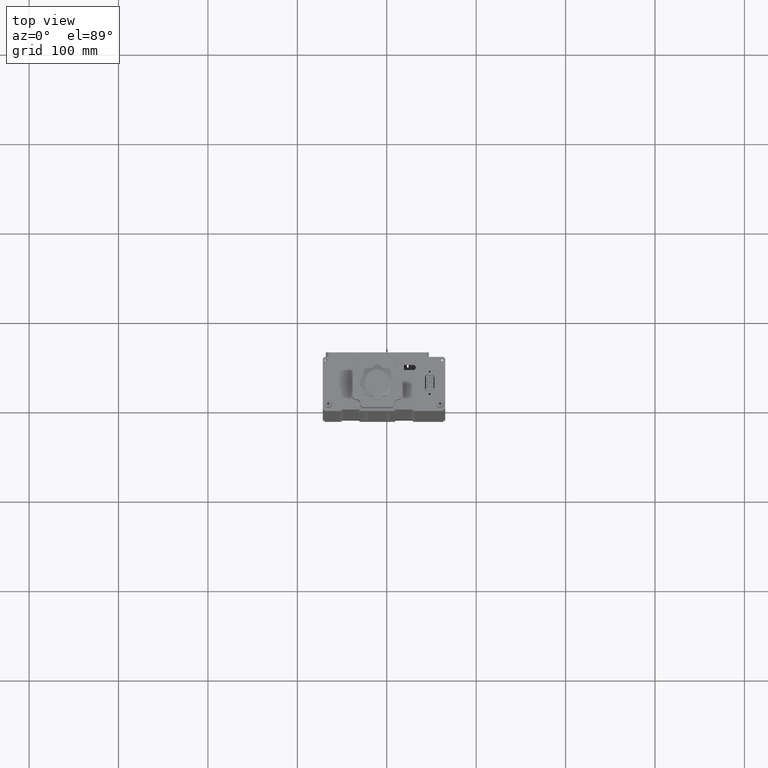
[diagram: clean part render]
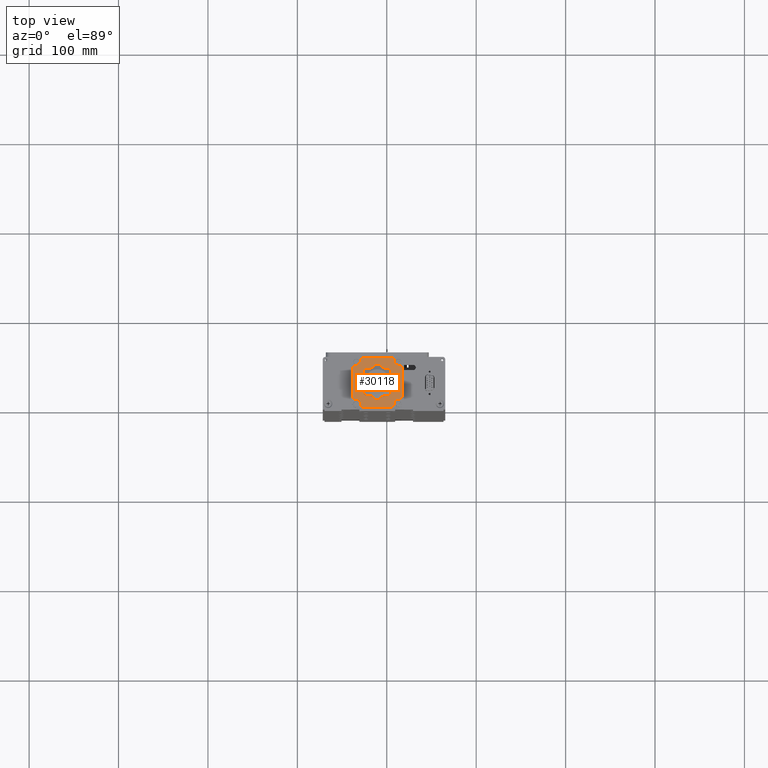
[diagram: same view with one face highlighted and labeled with its STEP entity id]
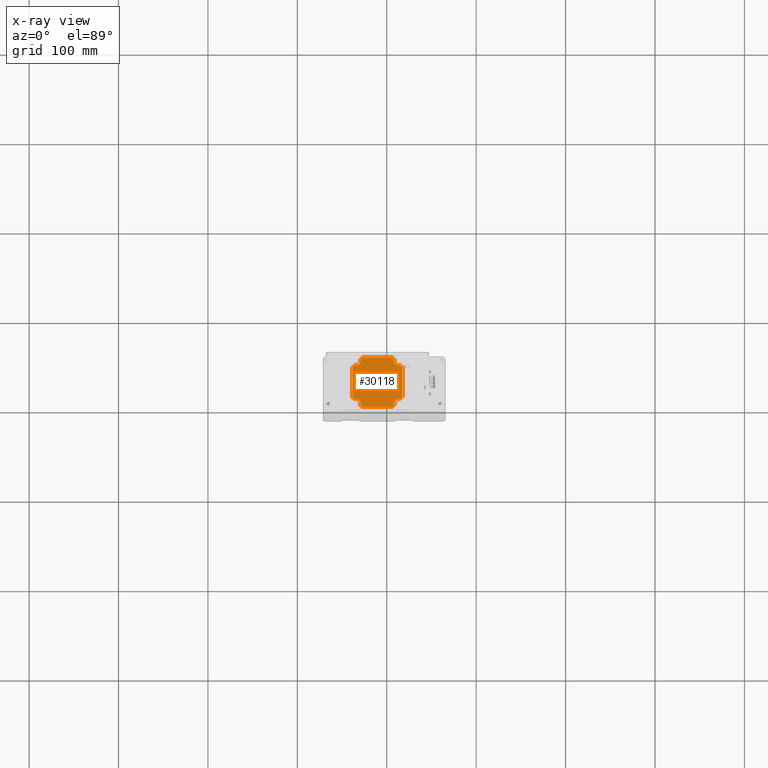
[diagram: x-ray of the same camera — body ghosted, the highlighted face saturated]
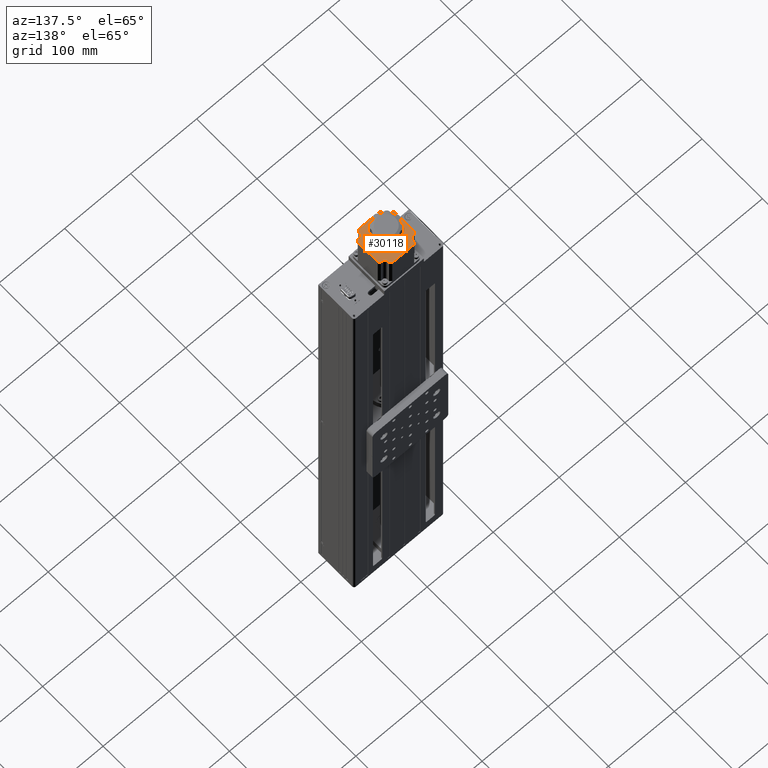
[diagram: same view with one face highlighted and labeled with its STEP entity id]
A machine part, top view. The second image highlights one B-rep face of the part: STEP entity #30118.
The next image is the same camera in x-ray: the body ghosted, the highlighted face saturated — about 0% of this face is hidden behind the body in this view.
A second angle (auxiliary view) of the same face is appended — the face is thin or edge-on in the first view.
In plain terms, the highlighted planar face has unit normal (0, 0, -1).
Its self-contained STEP definition (entity closure, byte-faithful):
#193 = VERTEX_POINT ( 'NONE', #4039 ) ;
#312 = ORIENTED_EDGE ( 'NONE', *, *, #14289, .F. ) ;
#525 = ORIENTED_EDGE ( 'NONE', *, *, #25549, .F. ) ;
#588 = CARTESIAN_POINT ( 'NONE',  ( -34.18080835603993961, 39.65234937935200321, 417.8000000000000114 ) ) ;
#684 = CARTESIAN_POINT ( 'NONE',  ( -36.11080835603994643, 1.512349379351983547, 417.8000000000000114 ) ) ;
#1204 = DIRECTION ( 'NONE',  ( 1.000000000000000000, -7.831708695154873560E-16, -0.000000000000000000 ) ) ;
#1373 = EDGE_CURVE ( 'NONE', #21879, #29767, #12743, .T. ) ;
#1464 = LINE ( 'NONE', #7964, #12417 ) ;
#1984 = DIRECTION ( 'NONE',  ( -1.000000000000000000, 0.000000000000000000, 0.000000000000000000 ) ) ;
#2150 = EDGE_CURVE ( 'NONE', #15566, #14436, #5323, .T. ) ;
#2249 = CARTESIAN_POINT ( 'NONE',  ( -10.61080835603994110, 20.58234937935199582, 417.8000000000000114 ) ) ;
#2570 = DIRECTION ( 'NONE',  ( -1.000000000000000000, 7.831708695154873560E-16, 0.000000000000000000 ) ) ;
#2606 = ORIENTED_EDGE ( 'NONE', *, *, #4635, .T. ) ;
#2746 = CIRCLE ( 'NONE', #12120, 4.499999999999997335 ) ;
#3060 = CARTESIAN_POINT ( 'NONE',  ( -27.18080835603992895, 48.58234937935198872, 417.8000000000000114 ) ) ;
#3087 = VECTOR ( 'NONE', #11141, 1000.000000000000000 ) ;
#3100 = VECTOR ( 'NONE', #15349, 1000.000000000000114 ) ;
#3150 = VERTEX_POINT ( 'NONE', #30393 ) ;
#3387 = LINE ( 'NONE', #7880, #28448 ) ;
#3531 = VERTEX_POINT ( 'NONE', #6876 ) ;
#3665 = VERTEX_POINT ( 'NONE', #17038 ) ;
#3705 = ORIENTED_EDGE ( 'NONE', *, *, #1373, .F. ) ;
#3783 = VERTEX_POINT ( 'NONE', #30504 ) ;
#3857 = VERTEX_POINT ( 'NONE', #24584 ) ;
#3867 = LINE ( 'NONE', #27351, #12747 ) ;
#4039 = CARTESIAN_POINT ( 'NONE',  ( -29.68080835603994316, 46.08234937935200293, 417.8000000000000114 ) ) ;
#4106 = VERTEX_POINT ( 'NONE', #4663 ) ;
#4260 = VERTEX_POINT ( 'NONE', #19921 ) ;
#4380 = VERTEX_POINT ( 'NONE', #8486 ) ;
#4381 = CARTESIAN_POINT ( 'NONE',  ( -13.78580835603994181, 20.58234937935199582, 417.8000000000000114 ) ) ;
#4440 = ORIENTED_EDGE ( 'NONE', *, *, #8873, .T. ) ;
#4521 = ORIENTED_EDGE ( 'NONE', *, *, #13809, .T. ) ;
#4543 = VECTOR ( 'NONE', #20016, 1000.000000000000114 ) ;
#4591 = CARTESIAN_POINT ( 'NONE',  ( -29.68080835603994316, 46.08234937935200293, 417.8000000000000114 ) ) ;
#4635 = EDGE_CURVE ( 'NONE', #3150, #17161, #21594, .T. ) ;
#4663 = CARTESIAN_POINT ( 'NONE',  ( 8.459191643960066287, -4.917650620648031712, 417.8000000000000114 ) ) ;
#4759 = CARTESIAN_POINT ( 'NONE',  ( 12.95919164396006984, -2.987650620648013344, 417.8000000000000114 ) ) ;
#4875 = EDGE_CURVE ( 'NONE', #15566, #4380, #21528, .T. ) ;
#5042 = LINE ( 'NONE', #7057, #25687 ) ;
#5186 = LINE ( 'NONE', #12601, #19157 ) ;
#5323 = LINE ( 'NONE', #684, #23366 ) ;
#5620 = ORIENTED_EDGE ( 'NONE', *, *, #15753, .T. ) ;
#5940 = LINE ( 'NONE', #15200, #3100 ) ;
#5953 = DIRECTION ( 'NONE',  ( 1.000000000000000000, -1.239088197126290570E-16, 0.000000000000000000 ) ) ;
#5963 = AXIS2_PLACEMENT_3D ( 'NONE', #4759, #23440, #1984 ) ;
#5971 = LINE ( 'NONE', #10591, #4543 ) ;
#6272 = DIRECTION ( 'NONE',  ( 0.000000000000000000, 0.000000000000000000, -1.000000000000000000 ) ) ;
#6325 = VECTOR ( 'NONE', #13153, 1000.000000000000114 ) ;
#6329 = VERTEX_POINT ( 'NONE', #25363 ) ;
#6482 = CARTESIAN_POINT ( 'NONE',  ( -36.11080835603994643, 1.512349379351983547, 417.8000000000000114 ) ) ;
#6498 = LINE ( 'NONE', #18546, #10151 ) ;
#6669 = CARTESIAN_POINT ( 'NONE',  ( -29.68080835603994316, 44.15234937935200321, 417.8000000000000114 ) ) ;
#6778 = LINE ( 'NONE', #13723, #26392 ) ;
#6803 = DIRECTION ( 'NONE',  ( -1.000000000000000000, 0.000000000000000000, 0.000000000000000000 ) ) ;
#6876 = CARTESIAN_POINT ( 'NONE',  ( 8.459191643960068063, -2.987650620648013344, 417.8000000000000114 ) ) ;
#6894 = DIRECTION ( 'NONE',  ( -1.000000000000000000, 0.000000000000000000, 0.000000000000000000 ) ) ;
#6964 = CIRCLE ( 'NONE', #5963, 4.499999999999999112 ) ;
#7057 = CARTESIAN_POINT ( 'NONE',  ( 12.95919164396006273, 39.65234937935200321, 417.8000000000000114 ) ) ;
#7083 = EDGE_CURVE ( 'NONE', #26823, #21116, #1464, .T. ) ;
#7333 = ORIENTED_EDGE ( 'NONE', *, *, #2150, .T. ) ;
#7409 = PLANE ( 'NONE',  #28111 ) ;
#7779 = CARTESIAN_POINT ( 'NONE',  ( -38.61080835603996064, 48.58234937935198872, 417.8000000000000114 ) ) ;
#7880 = CARTESIAN_POINT ( 'NONE',  ( 8.459191643960066287, -2.987650620648013344, 417.8000000000000114 ) ) ;
#7964 = CARTESIAN_POINT ( 'NONE',  ( 17.38919164396007133, 48.58234937935198872, 417.8000000000000114 ) ) ;
#8144 = CIRCLE ( 'NONE', #25406, 3.175000000000000711 ) ;
#8199 = CARTESIAN_POINT ( 'NONE',  ( -38.61080835603996064, 37.15234937935200321, 417.8000000000000114 ) ) ;
#8486 = CARTESIAN_POINT ( 'NONE',  ( -38.61080835603996064, 37.15234937935200321, 417.8000000000000114 ) ) ;
#8497 = CARTESIAN_POINT ( 'NONE',  ( -34.18080835603993251, -2.987650620648013344, 417.8000000000000114 ) ) ;
#8651 = DIRECTION ( 'NONE',  ( 1.110223024625156294E-16, -1.000000000000000000, 0.000000000000000000 ) ) ;
#8661 = VECTOR ( 'NONE', #25866, 1000.000000000000000 ) ;
#8760 = LINE ( 'NONE', #22350, #25942 ) ;
#8795 = ORIENTED_EDGE ( 'NONE', *, *, #19072, .F. ) ;
#8873 = EDGE_CURVE ( 'NONE', #3857, #21475, #28847, .T. ) ;
#9568 = LINE ( 'NONE', #26699, #19999 ) ;
#9651 = ORIENTED_EDGE ( 'NONE', *, *, #16731, .F. ) ;
#9921 = EDGE_CURVE ( 'NONE', #14339, #23682, #19892, .T. ) ;
#9935 = CARTESIAN_POINT ( 'NONE',  ( 17.38919164396006423, 4.012349379351978662, 417.8000000000000114 ) ) ;
#10151 = VECTOR ( 'NONE', #23158, 1000.000000000000000 ) ;
#10183 = CARTESIAN_POINT ( 'NONE',  ( 12.95919164396006273, 39.65234937935200321, 417.8000000000000114 ) ) ;
#10591 = CARTESIAN_POINT ( 'NONE',  ( -27.18080835603992895, -7.417650620648006843, 417.8000000000000114 ) ) ;
#11047 = ORIENTED_EDGE ( 'NONE', *, *, #9921, .T. ) ;
#11141 = DIRECTION ( 'NONE',  ( -1.110223024625156294E-16, 1.000000000000000000, 0.000000000000000000 ) ) ;
#11164 = CARTESIAN_POINT ( 'NONE',  ( -29.68080835603993606, -2.987650620648013344, 417.8000000000000114 ) ) ;
#11197 = EDGE_CURVE ( 'NONE', #18991, #18373, #15044, .T. ) ;
#11889 = DIRECTION ( 'NONE',  ( 1.000000000000000000, 7.831708695154873560E-16, 0.000000000000000000 ) ) ;
#12047 = DIRECTION ( 'NONE',  ( -1.367953369627425833E-16, -1.000000000000000000, 0.000000000000000000 ) ) ;
#12100 = AXIS2_PLACEMENT_3D ( 'NONE', #17939, #30303, #23175 ) ;
#12120 = AXIS2_PLACEMENT_3D ( 'NONE', #8497, #17927, #27353 ) ;
#12134 = EDGE_CURVE ( 'NONE', #17989, #28901, #2746, .T. ) ;
#12242 = CARTESIAN_POINT ( 'NONE',  ( -29.68080835603994316, 44.15234937935200321, 417.8000000000000114 ) ) ;
#12417 = VECTOR ( 'NONE', #5953, 1000.000000000000000 ) ;
#12601 = CARTESIAN_POINT ( 'NONE',  ( 8.459191643960059181, 44.15234937935200321, 417.8000000000000114 ) ) ;
#12653 = EDGE_CURVE ( 'NONE', #29529, #4106, #6778, .T. ) ;
#12743 = CIRCLE ( 'NONE', #30001, 4.499999999999997335 ) ;
#12747 = VECTOR ( 'NONE', #8651, 1000.000000000000000 ) ;
#12819 = CARTESIAN_POINT ( 'NONE',  ( -7.435808356039941280, 20.58234937935199582, 417.8000000000000114 ) ) ;
#12827 = DIRECTION ( 'NONE',  ( 1.110223024625156294E-16, -1.000000000000000000, 0.000000000000000000 ) ) ;
#12968 = EDGE_CURVE ( 'NONE', #18373, #18991, #8144, .T. ) ;
#12992 = CARTESIAN_POINT ( 'NONE',  ( 8.459191643960062734, 44.15234937935200321, 417.8000000000000114 ) ) ;
#13085 = VECTOR ( 'NONE', #19431, 1000.000000000000114 ) ;
#13153 = DIRECTION ( 'NONE',  ( -0.7071067811865500152, -0.7071067811865451302, 0.000000000000000000 ) ) ;
#13438 = ORIENTED_EDGE ( 'NONE', *, *, #12653, .T. ) ;
#13723 = CARTESIAN_POINT ( 'NONE',  ( 8.459191643960066287, -4.917650620648031712, 417.8000000000000114 ) ) ;
#13809 = EDGE_CURVE ( 'NONE', #14436, #17989, #8760, .T. ) ;
#14015 = DIRECTION ( 'NONE',  ( -0.7071067811865509034, -0.7071067811865441310, 0.000000000000000000 ) ) ;
#14201 = DIRECTION ( 'NONE',  ( 0.000000000000000000, 0.000000000000000000, -1.000000000000000000 ) ) ;
#14289 = EDGE_CURVE ( 'NONE', #3531, #4106, #3387, .T. ) ;
#14339 = VERTEX_POINT ( 'NONE', #10183 ) ;
#14436 = VERTEX_POINT ( 'NONE', #6482 ) ;
#14830 = ORIENTED_EDGE ( 'NONE', *, *, #12134, .T. ) ;
#14958 = DIRECTION ( 'NONE',  ( 0.000000000000000000, 0.000000000000000000, -1.000000000000000000 ) ) ;
#15044 = CIRCLE ( 'NONE', #12100, 3.175000000000000711 ) ;
#15200 = CARTESIAN_POINT ( 'NONE',  ( 5.959191643960084050, 48.58234937935198872, 417.8000000000000114 ) ) ;
#15252 = ORIENTED_EDGE ( 'NONE', *, *, #17237, .T. ) ;
#15349 = DIRECTION ( 'NONE',  ( -0.7071067811865456854, 0.7071067811865493491, 0.000000000000000000 ) ) ;
#15389 = ORIENTED_EDGE ( 'NONE', *, *, #24730, .F. ) ;
#15533 = VECTOR ( 'NONE', #28339, 1000.000000000000000 ) ;
#15566 = VERTEX_POINT ( 'NONE', #22373 ) ;
#15753 = EDGE_CURVE ( 'NONE', #23682, #4260, #5186, .T. ) ;
#16224 = ORIENTED_EDGE ( 'NONE', *, *, #26728, .F. ) ;
#16292 = VECTOR ( 'NONE', #14015, 1000.000000000000114 ) ;
#16350 = ORIENTED_EDGE ( 'NONE', *, *, #4875, .F. ) ;
#16551 = CARTESIAN_POINT ( 'NONE',  ( -34.18080835603993961, 44.15234937935200321, 417.8000000000000114 ) ) ;
#16600 = VERTEX_POINT ( 'NONE', #18700 ) ;
#16731 = EDGE_CURVE ( 'NONE', #3665, #21879, #28700, .T. ) ;
#16826 = FACE_BOUND ( 'NONE', #23552, .T. ) ;
#16967 = VECTOR ( 'NONE', #18977, 1000.000000000000114 ) ;
#17038 = CARTESIAN_POINT ( 'NONE',  ( -36.11080835603993933, 39.65234937935200321, 417.8000000000000114 ) ) ;
#17161 = VERTEX_POINT ( 'NONE', #9935 ) ;
#17237 = EDGE_CURVE ( 'NONE', #26823, #193, #25749, .T. ) ;
#17301 = EDGE_CURVE ( 'NONE', #21475, #14339, #5042, .T. ) ;
#17927 = DIRECTION ( 'NONE',  ( 0.000000000000000000, 0.000000000000000000, -1.000000000000000000 ) ) ;
#17939 = CARTESIAN_POINT ( 'NONE',  ( -10.61080835603994110, 20.58234937935199582, 417.8000000000000114 ) ) ;
#17989 = VERTEX_POINT ( 'NONE', #27539 ) ;
#18211 = ORIENTED_EDGE ( 'NONE', *, *, #20956, .T. ) ;
#18373 = VERTEX_POINT ( 'NONE', #4381 ) ;
#18398 = LINE ( 'NONE', #6669, #3087 ) ;
#18546 = CARTESIAN_POINT ( 'NONE',  ( 17.38919164396006423, -7.417650620648013060, 417.8000000000000114 ) ) ;
#18700 = CARTESIAN_POINT ( 'NONE',  ( 12.95919164396006984, 1.512349379351983547, 417.8000000000000114 ) ) ;
#18775 = CARTESIAN_POINT ( 'NONE',  ( 12.95919164396006984, 1.512349379351983547, 417.8000000000000114 ) ) ;
#18977 = DIRECTION ( 'NONE',  ( -0.7071067811865456854, 0.7071067811865493491, 0.000000000000000000 ) ) ;
#18991 = VERTEX_POINT ( 'NONE', #12819 ) ;
#19072 = EDGE_CURVE ( 'NONE', #16600, #3531, #6964, .T. ) ;
#19157 = VECTOR ( 'NONE', #22006, 1000.000000000000000 ) ;
#19431 = DIRECTION ( 'NONE',  ( 0.7071067811865479058, 0.7071067811865470176, 0.000000000000000000 ) ) ;
#19593 = DIRECTION ( 'NONE',  ( -1.000000000000000000, 0.000000000000000000, 0.000000000000000000 ) ) ;
#19611 = ORIENTED_EDGE ( 'NONE', *, *, #7083, .F. ) ;
#19703 = VECTOR ( 'NONE', #11889, 1000.000000000000000 ) ;
#19892 = CIRCLE ( 'NONE', #22356, 4.499999999999999112 ) ;
#19921 = CARTESIAN_POINT ( 'NONE',  ( 8.459191643960059181, 46.08234937935200293, 417.8000000000000114 ) ) ;
#19999 = VECTOR ( 'NONE', #12047, 1000.000000000000000 ) ;
#20016 = DIRECTION ( 'NONE',  ( 0.7071067811865465735, -0.7071067811865484609, -0.000000000000000000 ) ) ;
#20956 = EDGE_CURVE ( 'NONE', #4260, #21116, #5940, .T. ) ;
#21116 = VERTEX_POINT ( 'NONE', #23973 ) ;
#21475 = VERTEX_POINT ( 'NONE', #22058 ) ;
#21528 = LINE ( 'NONE', #7779, #8661 ) ;
#21594 = LINE ( 'NONE', #26385, #13085 ) ;
#21879 = VERTEX_POINT ( 'NONE', #26668 ) ;
#21950 = EDGE_LOOP ( 'NONE', ( #525, #13438, #312, #8795, #15389, #2606, #16224, #4440, #24531, #11047, #5620, #18211, #19611, #15252, #28256, #3705, #9651, #28681, #16350, #7333, #4521, #14830, #26163, #29948 ) ) ;
#22006 = DIRECTION ( 'NONE',  ( -1.110223024625156294E-16, 1.000000000000000000, 0.000000000000000000 ) ) ;
#22045 = EDGE_CURVE ( 'NONE', #3783, #6329, #5971, .T. ) ;
#22058 = CARTESIAN_POINT ( 'NONE',  ( 14.88919164396005357, 39.65234937935200321, 417.8000000000000114 ) ) ;
#22350 = CARTESIAN_POINT ( 'NONE',  ( -34.18080835603993251, 1.512349379351983547, 417.8000000000000114 ) ) ;
#22356 = AXIS2_PLACEMENT_3D ( 'NONE', #28109, #14201, #6803 ) ;
#22373 = CARTESIAN_POINT ( 'NONE',  ( -38.61080835603995354, 4.012349379352013301, 417.8000000000000114 ) ) ;
#22891 = CARTESIAN_POINT ( 'NONE',  ( 5.959191643960069840, -7.417650620648013060, 417.8000000000000114 ) ) ;
#22921 = EDGE_CURVE ( 'NONE', #29767, #193, #18398, .T. ) ;
#23122 = DIRECTION ( 'NONE',  ( 0.7071067811865499042, 0.7071067811865451302, 0.000000000000000000 ) ) ;
#23158 = DIRECTION ( 'NONE',  ( -1.000000000000000000, 1.239088197126290817E-16, 0.000000000000000000 ) ) ;
#23175 = DIRECTION ( 'NONE',  ( -1.000000000000000000, 0.000000000000000000, 0.000000000000000000 ) ) ;
#23366 = VECTOR ( 'NONE', #26333, 1000.000000000000114 ) ;
#23440 = DIRECTION ( 'NONE',  ( 0.000000000000000000, -0.000000000000000000, 1.000000000000000000 ) ) ;
#23552 = EDGE_LOOP ( 'NONE', ( #30577, #28251 ) ) ;
#23682 = VERTEX_POINT ( 'NONE', #12992 ) ;
#23973 = CARTESIAN_POINT ( 'NONE',  ( 5.959191643960084050, 48.58234937935198872, 417.8000000000000114 ) ) ;
#24531 = ORIENTED_EDGE ( 'NONE', *, *, #17301, .T. ) ;
#24584 = CARTESIAN_POINT ( 'NONE',  ( 17.38919164396006423, 37.15234937935197479, 417.8000000000000114 ) ) ;
#24730 = EDGE_CURVE ( 'NONE', #3150, #16600, #25722, .T. ) ;
#25363 = CARTESIAN_POINT ( 'NONE',  ( -27.18080835603991474, -7.417650620648013060, 417.8000000000000114 ) ) ;
#25406 = AXIS2_PLACEMENT_3D ( 'NONE', #2249, #6272, #6894 ) ;
#25549 = EDGE_CURVE ( 'NONE', #29529, #6329, #6498, .T. ) ;
#25687 = VECTOR ( 'NONE', #2570, 1000.000000000000000 ) ;
#25722 = LINE ( 'NONE', #18775, #15533 ) ;
#25749 = LINE ( 'NONE', #4591, #16292 ) ;
#25866 = DIRECTION ( 'NONE',  ( -1.110223024625156294E-16, 1.000000000000000000, 0.000000000000000000 ) ) ;
#25942 = VECTOR ( 'NONE', #1204, 1000.000000000000000 ) ;
#25974 = DIRECTION ( 'NONE',  ( 1.000000000000000000, 0.000000000000000000, 0.000000000000000000 ) ) ;
#26163 = ORIENTED_EDGE ( 'NONE', *, *, #29180, .T. ) ;
#26249 = CARTESIAN_POINT ( 'NONE',  ( 17.38919164396006423, -7.417650620648013060, 417.8000000000000114 ) ) ;
#26333 = DIRECTION ( 'NONE',  ( 0.7071067811865435759, -0.7071067811865513475, -0.000000000000000000 ) ) ;
#26383 = CARTESIAN_POINT ( 'NONE',  ( 14.88919164396005357, 39.65234937935200321, 417.8000000000000114 ) ) ;
#26385 = CARTESIAN_POINT ( 'NONE',  ( 17.38919164396006423, 4.012349379351992873, 417.8000000000000114 ) ) ;
#26392 = VECTOR ( 'NONE', #23122, 1000.000000000000114 ) ;
#26668 = CARTESIAN_POINT ( 'NONE',  ( -34.18080835603993961, 39.65234937935200321, 417.8000000000000114 ) ) ;
#26699 = CARTESIAN_POINT ( 'NONE',  ( 17.38919164396007133, 48.58234937935198872, 417.8000000000000114 ) ) ;
#26701 = FACE_OUTER_BOUND ( 'NONE', #21950, .T. ) ;
#26728 = EDGE_CURVE ( 'NONE', #3857, #17161, #9568, .T. ) ;
#26823 = VERTEX_POINT ( 'NONE', #3060 ) ;
#27351 = CARTESIAN_POINT ( 'NONE',  ( -29.68080835603993606, -2.987650620648013344, 417.8000000000000114 ) ) ;
#27353 = DIRECTION ( 'NONE',  ( 1.000000000000000000, 0.000000000000000000, 0.000000000000000000 ) ) ;
#27539 = CARTESIAN_POINT ( 'NONE',  ( -34.18080835603993251, 1.512349379351983547, 417.8000000000000114 ) ) ;
#27833 = DIRECTION ( 'NONE',  ( 0.000000000000000000, -0.000000000000000000, 1.000000000000000000 ) ) ;
#28109 = CARTESIAN_POINT ( 'NONE',  ( 12.95919164396006273, 44.15234937935200321, 417.8000000000000114 ) ) ;
#28111 = AXIS2_PLACEMENT_3D ( 'NONE', #26249, #14958, #19593 ) ;
#28251 = ORIENTED_EDGE ( 'NONE', *, *, #11197, .T. ) ;
#28256 = ORIENTED_EDGE ( 'NONE', *, *, #22921, .F. ) ;
#28339 = DIRECTION ( 'NONE',  ( -1.000000000000000000, -7.831708695154873560E-16, 0.000000000000000000 ) ) ;
#28448 = VECTOR ( 'NONE', #12827, 1000.000000000000000 ) ;
#28681 = ORIENTED_EDGE ( 'NONE', *, *, #29159, .T. ) ;
#28700 = LINE ( 'NONE', #588, #19703 ) ;
#28847 = LINE ( 'NONE', #26383, #16967 ) ;
#28901 = VERTEX_POINT ( 'NONE', #11164 ) ;
#29159 = EDGE_CURVE ( 'NONE', #3665, #4380, #29359, .T. ) ;
#29180 = EDGE_CURVE ( 'NONE', #28901, #3783, #3867, .T. ) ;
#29359 = LINE ( 'NONE', #8199, #6325 ) ;
#29529 = VERTEX_POINT ( 'NONE', #22891 ) ;
#29767 = VERTEX_POINT ( 'NONE', #12242 ) ;
#29948 = ORIENTED_EDGE ( 'NONE', *, *, #22045, .T. ) ;
#30001 = AXIS2_PLACEMENT_3D ( 'NONE', #16551, #27833, #25974 ) ;
#30118 = ADVANCED_FACE ( 'NONE', ( #16826, #26701 ), #7409, .F. ) ;
#30303 = DIRECTION ( 'NONE',  ( 0.000000000000000000, 0.000000000000000000, -1.000000000000000000 ) ) ;
#30393 = CARTESIAN_POINT ( 'NONE',  ( 14.88919164396005357, 1.512349379351983547, 417.8000000000000114 ) ) ;
#30504 = CARTESIAN_POINT ( 'NONE',  ( -29.68080835603993606, -4.917650620647990856, 417.8000000000000114 ) ) ;
#30577 = ORIENTED_EDGE ( 'NONE', *, *, #12968, .T. ) ;